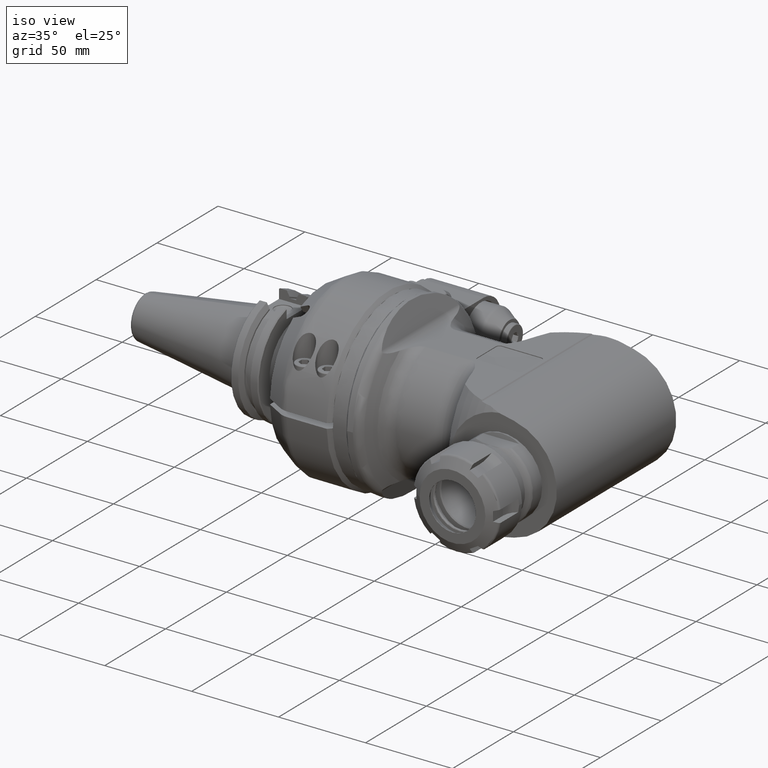
[diagram: clean part render]
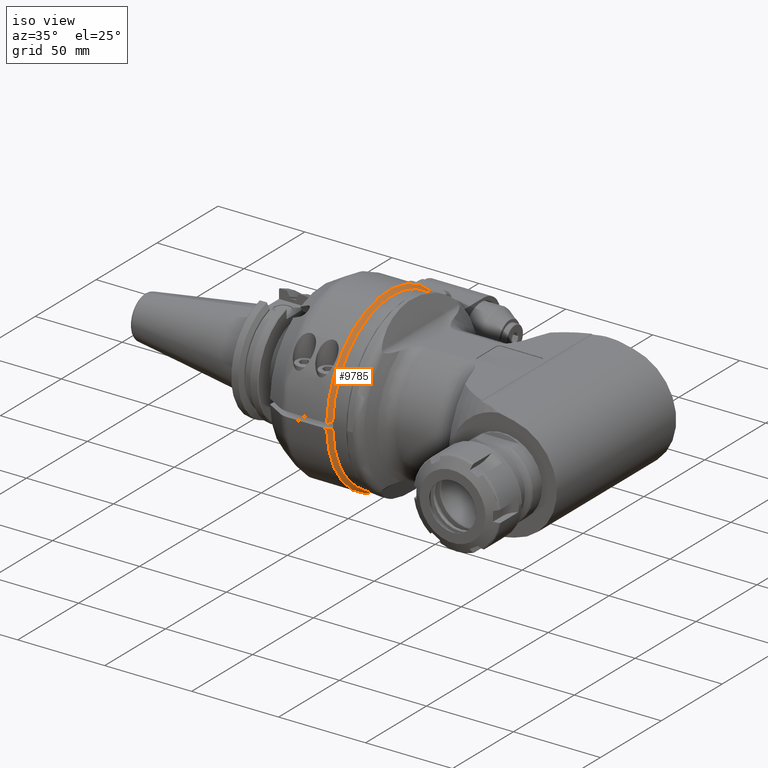
[diagram: same view with one face highlighted and labeled with its STEP entity id]
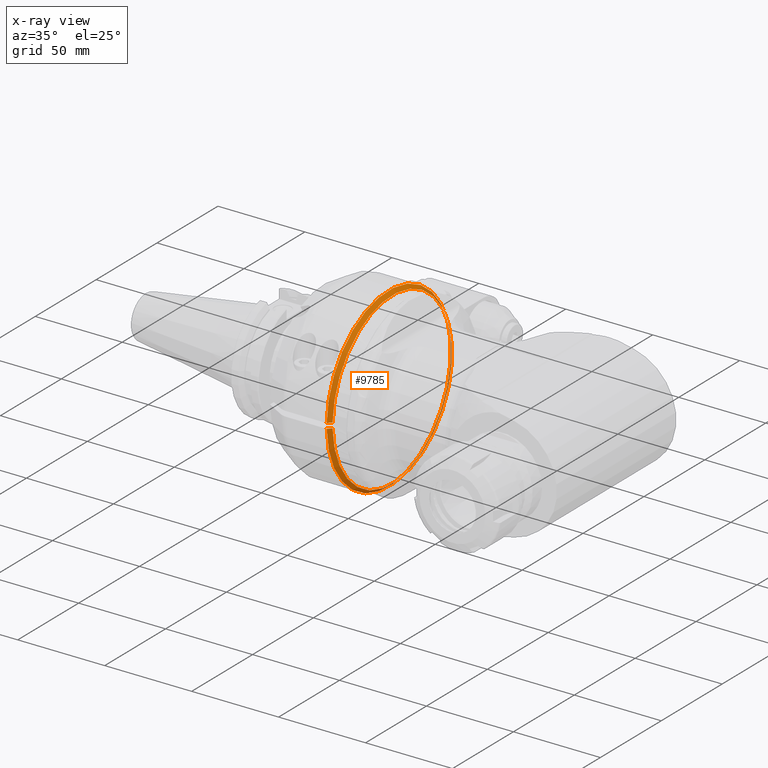
[diagram: x-ray of the same camera — body ghosted, the highlighted face saturated]
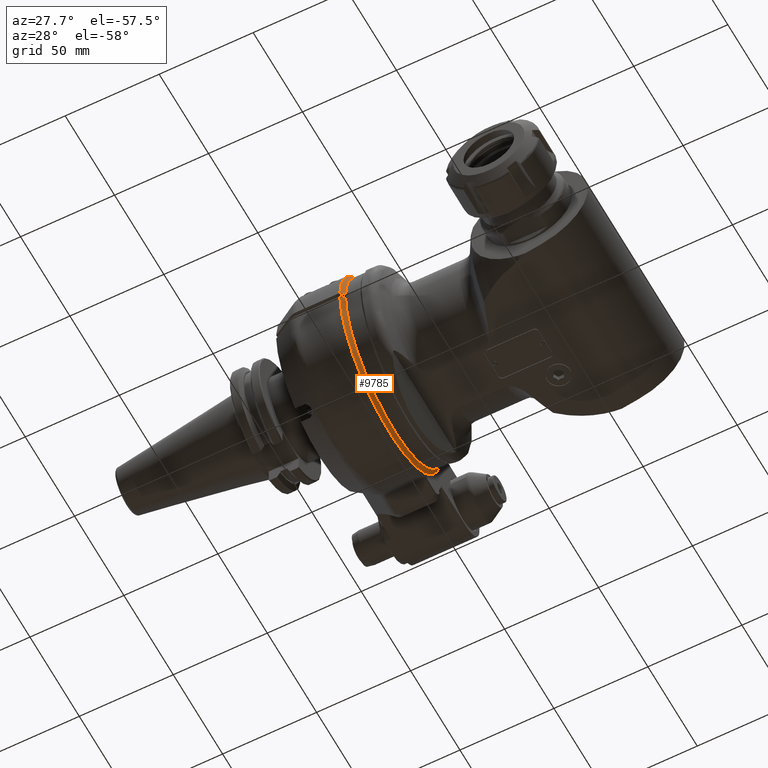
[diagram: same view with one face highlighted and labeled with its STEP entity id]
A machine part, iso view. The second image highlights one B-rep face of the part: STEP entity #9785.
The next image is the same camera in x-ray: the body ghosted, the highlighted face saturated — about 11% of this face is hidden behind the body in this view.
A second angle (auxiliary view) of the same face is appended — the face is thin or edge-on in the first view.
In plain terms, the highlighted conical surface has half-angle 45 deg.
Its self-contained STEP definition (entity closure, byte-faithful):
#98=CONICAL_SURFACE('',#10525,50.,0.785398163397448);
#255=(
BOUNDED_CURVE()
B_SPLINE_CURVE(2,(#20255,#20256,#20257),.UNSPECIFIED.,.F.,.F.)
B_SPLINE_CURVE_WITH_KNOTS((3,3),(-0.564591459525085,-0.191486343836374),
 .UNSPECIFIED.)
CURVE()
GEOMETRIC_REPRESENTATION_ITEM()
RATIONAL_B_SPLINE_CURVE((1.00850972307627,1.00599717540352,1.00308912932))
REPRESENTATION_ITEM('')
);
#256=(
BOUNDED_CURVE()
B_SPLINE_CURVE(2,(#20260,#20261,#20262),.UNSPECIFIED.,.F.,.F.)
B_SPLINE_CURVE_WITH_KNOTS((3,3),(-5.67826879781681,-5.3051636821038),
 .UNSPECIFIED.)
CURVE()
GEOMETRIC_REPRESENTATION_ITEM()
RATIONAL_B_SPLINE_CURVE((1.00308912932,1.00599717540371,1.00850972307659))
REPRESENTATION_ITEM('')
);
#2470=FACE_OUTER_BOUND('',#3031,.T.);
#3031=EDGE_LOOP('',(#7852,#7853,#7854,#7855));
#3525=CIRCLE('',#10520,51.);
#3530=CIRCLE('',#10526,49.);
#4353=VERTEX_POINT('',#20184);
#4354=VERTEX_POINT('',#20185);
#4360=VERTEX_POINT('',#20254);
#4361=VERTEX_POINT('',#20258);
#5592=EDGE_CURVE('',#4353,#4354,#3525,.T.);
#5602=EDGE_CURVE('',#4354,#4360,#255,.T.);
#5603=EDGE_CURVE('',#4361,#4360,#3530,.T.);
#5604=EDGE_CURVE('',#4361,#4353,#256,.T.);
#7852=ORIENTED_EDGE('',*,*,#5592,.T.);
#7853=ORIENTED_EDGE('',*,*,#5602,.T.);
#7854=ORIENTED_EDGE('',*,*,#5603,.F.);
#7855=ORIENTED_EDGE('',*,*,#5604,.T.);
#9785=ADVANCED_FACE('',(#2470),#98,.T.);
#10520=AXIS2_PLACEMENT_3D('',#20186,#12204,#12205);
#10525=AXIS2_PLACEMENT_3D('',#20253,#12216,#12217);
#10526=AXIS2_PLACEMENT_3D('',#20259,#12218,#12219);
#12204=DIRECTION('center_axis',(1.,0.,0.));
#12205=DIRECTION('ref_axis',(0.,1.,0.));
#12216=DIRECTION('center_axis',(-1.,0.,0.));
#12217=DIRECTION('ref_axis',(0.,1.,0.));
#12218=DIRECTION('center_axis',(1.,0.,0.));
#12219=DIRECTION('ref_axis',(0.,1.,0.));
#20184=CARTESIAN_POINT('',(-14.,-50.9779364039,-1.5));
#20185=CARTESIAN_POINT('',(-14.,-50.9779364039,1.5));
#20186=CARTESIAN_POINT('Origin',(-14.,0.,0.));
#20253=CARTESIAN_POINT('Origin',(-13.,0.,0.));
#20254=CARTESIAN_POINT('',(-12.,-48.97703543499,1.5));
#20255=CARTESIAN_POINT('Ctrl Pts',(-14.0000000000021,-50.9779364038979,
1.5));
#20256=CARTESIAN_POINT('Ctrl Pts',(-12.9799819768498,-49.9574769100383,
1.5));
#20257=CARTESIAN_POINT('Ctrl Pts',(-12.0000000000021,-48.9770354349879,
1.5));
#20258=CARTESIAN_POINT('',(-12.,-48.97703543499,-1.5));
#20259=CARTESIAN_POINT('Origin',(-12.,0.,0.));
#20260=CARTESIAN_POINT('Ctrl Pts',(-12.0000000000021,-48.9770354349879,
-1.5));
#20261=CARTESIAN_POINT('Ctrl Pts',(-12.9799819769135,-49.957476910102,-1.5));
#20262=CARTESIAN_POINT('Ctrl Pts',(-14.0000000001347,-50.9779364040305,
-1.5));